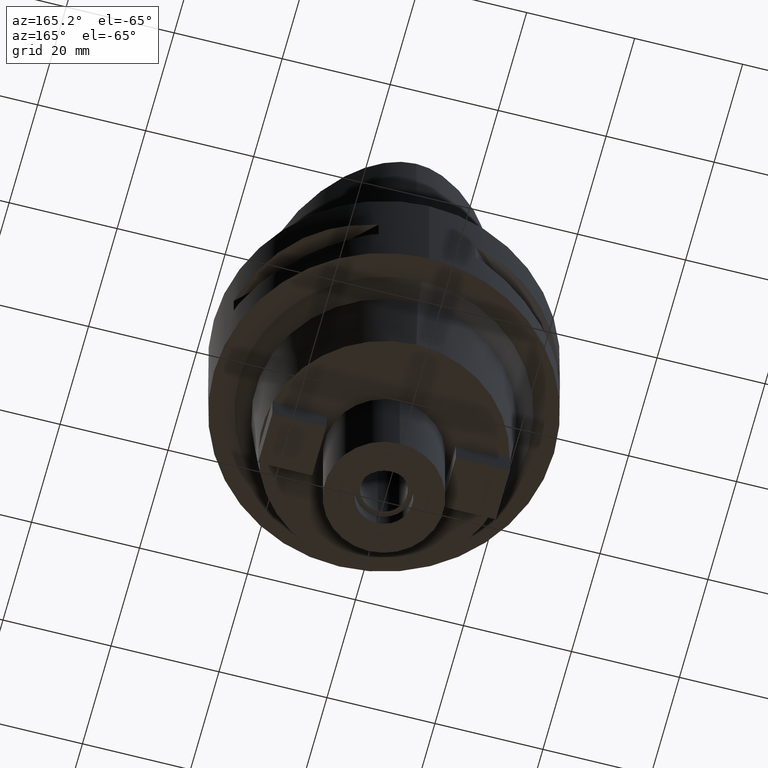
[diagram: clean part render]
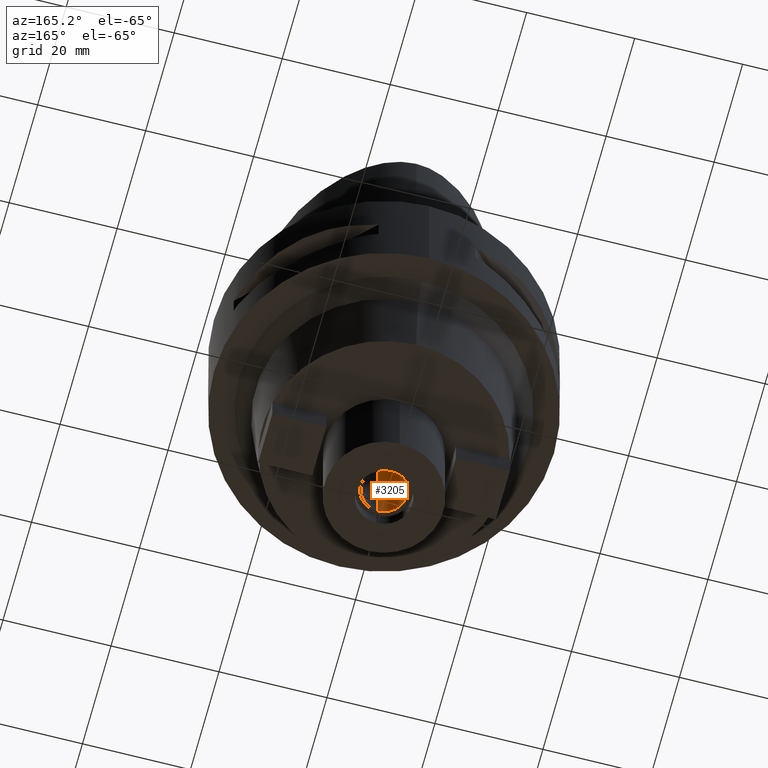
[diagram: same view with one face highlighted and labeled with its STEP entity id]
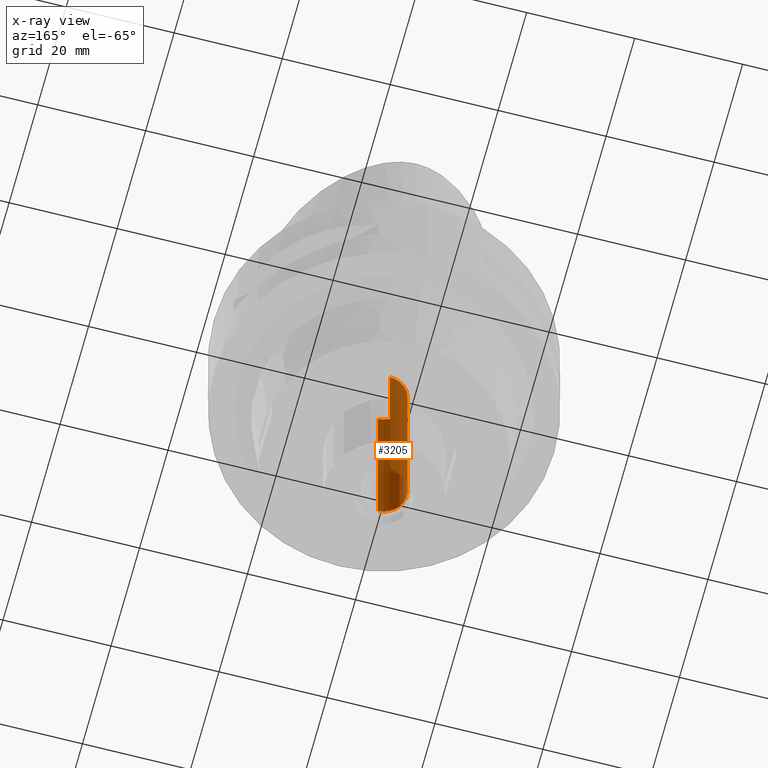
[diagram: x-ray of the same camera — body ghosted, the highlighted face saturated]
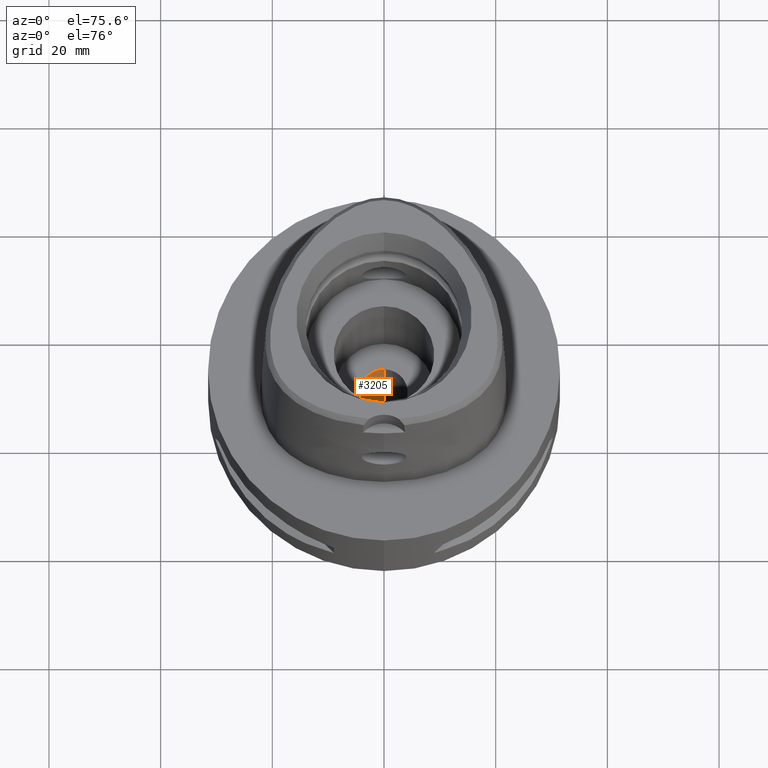
[diagram: same view with one face highlighted and labeled with its STEP entity id]
A machine part, auxiliary view. The second image highlights one B-rep face of the part: STEP entity #3205.
The next image is the same camera in x-ray: the body ghosted, the highlighted face saturated — about 55% of this face is hidden behind the body in this view.
A second angle (auxiliary view) of the same face is appended — the face is thin or edge-on in the first view.
In plain terms, the highlighted cylindrical surface (edge-blend (fillet) strip) has radius 4.25 mm, axis along (0, 0, -1).
Its self-contained STEP definition (entity closure, byte-faithful):
#993=CARTESIAN_POINT('',(0.E0,0.E0,-5.5E1));
#994=DIRECTION('',(0.E0,0.E0,-1.E0));
#995=DIRECTION('',(0.E0,-1.E0,0.E0));
#996=AXIS2_PLACEMENT_3D('',#993,#994,#995);
#1009=DIRECTION('',(0.E0,0.E0,-1.E0));
#1010=VECTOR('',#1009,3.9E1);
#1011=CARTESIAN_POINT('',(0.E0,-4.25E0,-1.6E1));
#1012=LINE('',#1011,#1010);
#1016=DIRECTION('',(0.E0,0.E0,1.E0));
#1017=VECTOR('',#1016,3.9E1);
#1018=CARTESIAN_POINT('',(0.E0,4.25E0,-5.5E1));
#1019=LINE('',#1018,#1017);
#1047=CARTESIAN_POINT('',(0.E0,0.E0,-1.6E1));
#1048=DIRECTION('',(0.E0,0.E0,1.E0));
#1049=DIRECTION('',(0.E0,1.E0,0.E0));
#1050=AXIS2_PLACEMENT_3D('',#1047,#1048,#1049);
#1908=CARTESIAN_POINT('',(0.E0,-4.25E0,-5.5E1));
#1909=CARTESIAN_POINT('',(0.E0,4.25E0,-5.5E1));
#1910=VERTEX_POINT('',#1908);
#1911=VERTEX_POINT('',#1909);
#1912=CARTESIAN_POINT('',(0.E0,4.25E0,-1.6E1));
#1913=VERTEX_POINT('',#1912);
#1914=CARTESIAN_POINT('',(0.E0,-4.25E0,-1.6E1));
#1915=VERTEX_POINT('',#1914);
#3191=CARTESIAN_POINT('',(0.E0,0.E0,2.9E0));
#3192=DIRECTION('',(0.E0,0.E0,-1.E0));
#3193=DIRECTION('',(0.E0,-1.E0,0.E0));
#3194=AXIS2_PLACEMENT_3D('',#3191,#3192,#3193);
#3195=CYLINDRICAL_SURFACE('',#3194,4.25E0);
#3197=ORIENTED_EDGE('',*,*,#3196,.F.);
#3198=ORIENTED_EDGE('',*,*,#3184,.F.);
#3200=ORIENTED_EDGE('',*,*,#3199,.F.);
#3202=ORIENTED_EDGE('',*,*,#3201,.F.);
#3203=EDGE_LOOP('',(#3197,#3198,#3200,#3202));
#3204=FACE_OUTER_BOUND('',#3203,.F.);
#997=CIRCLE('',#996,4.25E0);
#1051=CIRCLE('',#1050,4.25E0);
#3184=EDGE_CURVE('',#1910,#1911,#997,.T.);
#3196=EDGE_CURVE('',#1911,#1913,#1019,.T.);
#3199=EDGE_CURVE('',#1915,#1910,#1012,.T.);
#3201=EDGE_CURVE('',#1913,#1915,#1051,.T.);
#3205=ADVANCED_FACE('',(#3204),#3195,.F.);